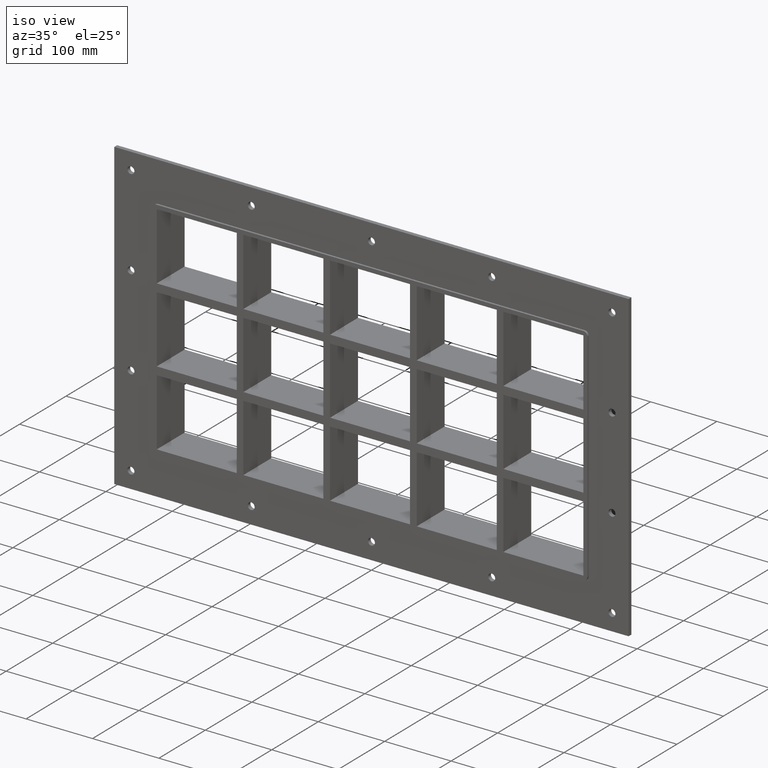
[diagram: clean part render]
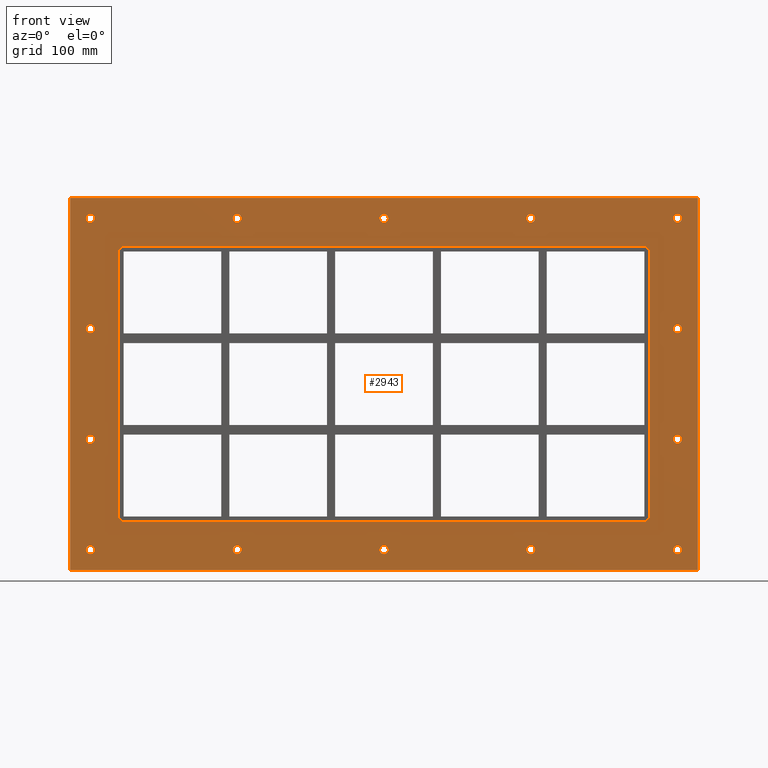
[diagram: tour spotlight — one face highlighted and labeled with its STEP entity id]
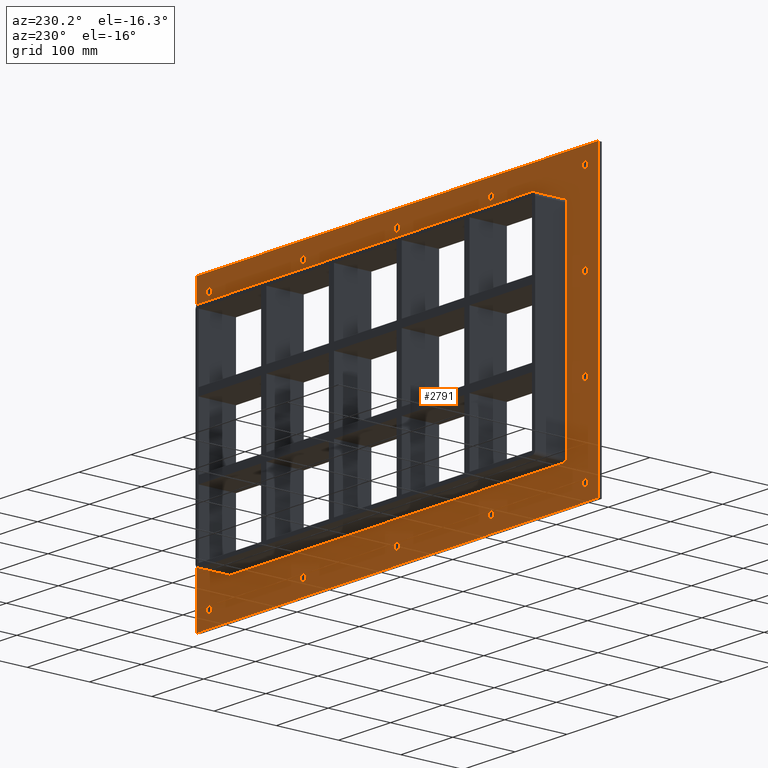
[diagram: tour spotlight — one face highlighted and labeled with its STEP entity id]
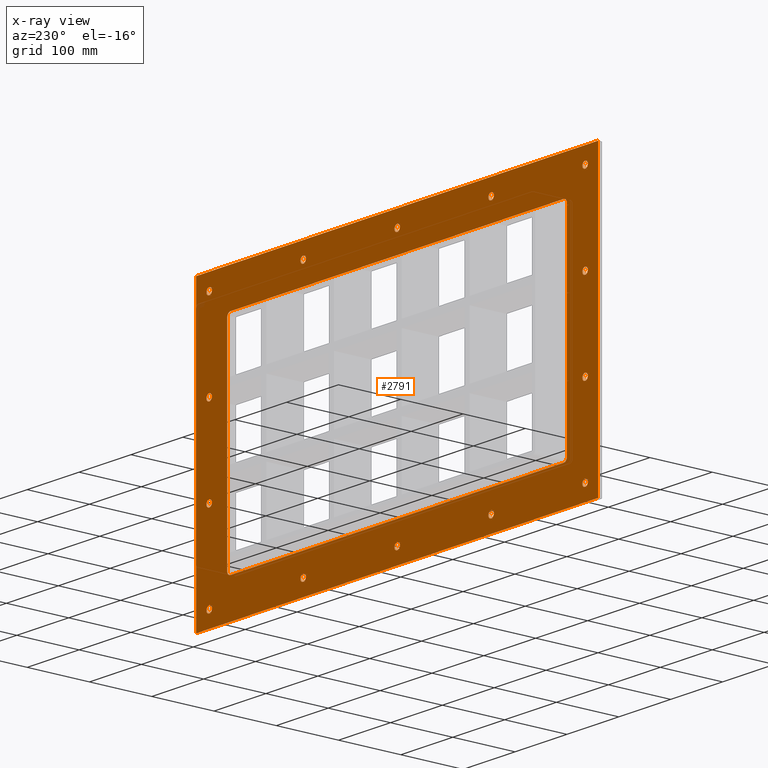
[diagram: x-ray of the same camera — body ghosted, this tour face saturated]
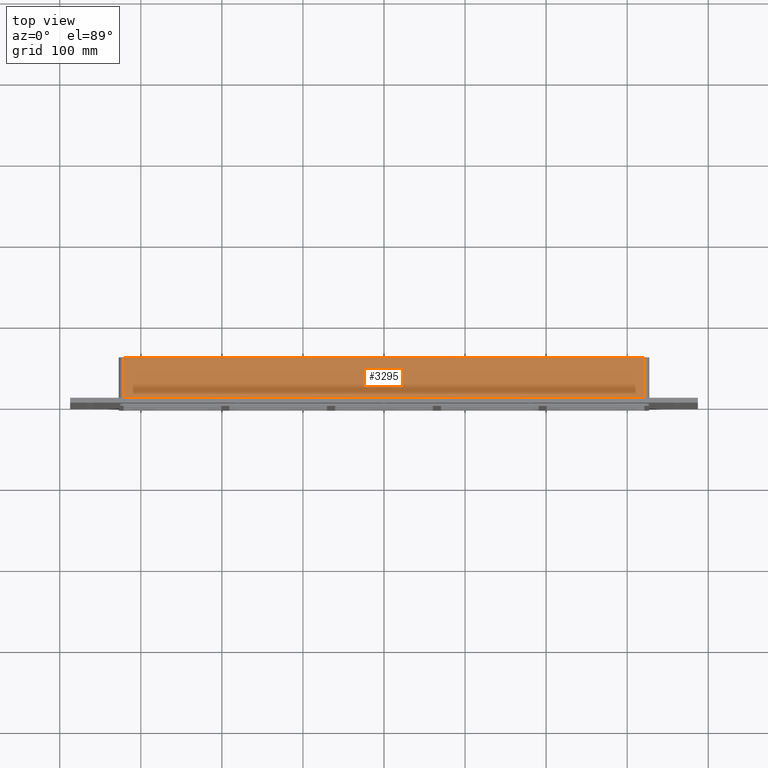
[diagram: tour spotlight — one face highlighted and labeled with its STEP entity id]
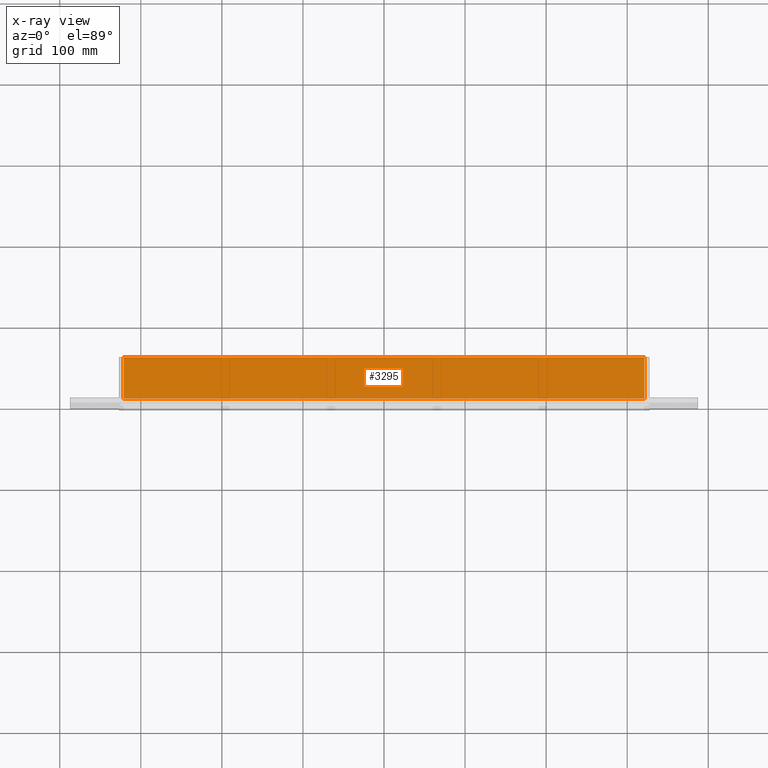
[diagram: x-ray of the same camera — body ghosted, this tour face saturated]
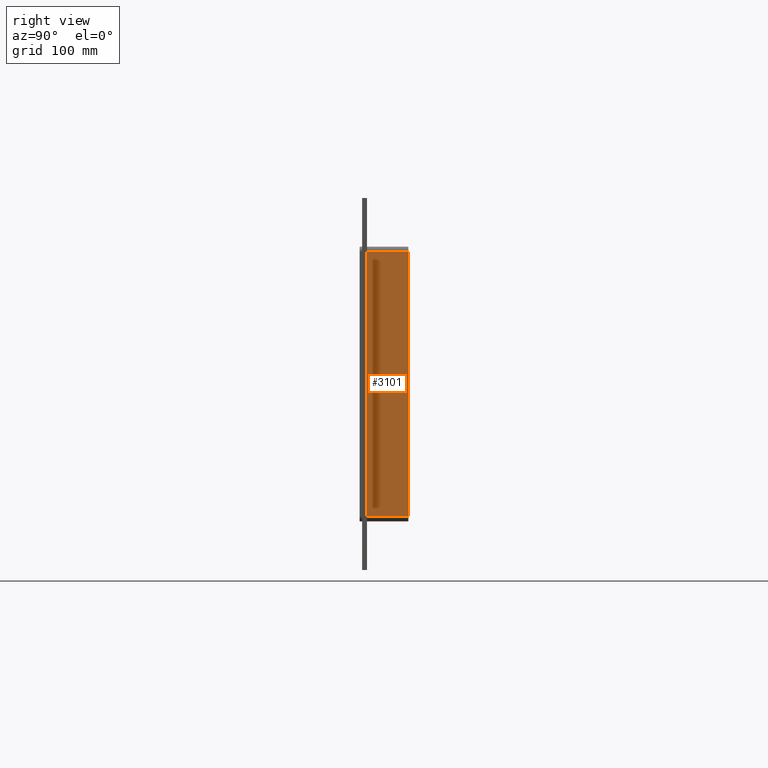
[diagram: tour spotlight — one face highlighted and labeled with its STEP entity id]
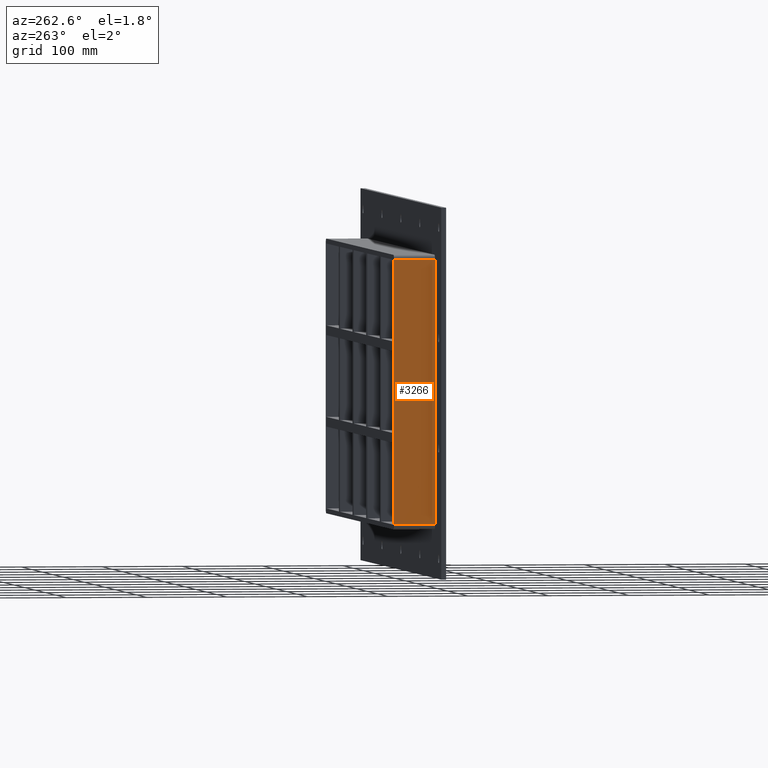
[diagram: tour spotlight — one face highlighted and labeled with its STEP entity id]
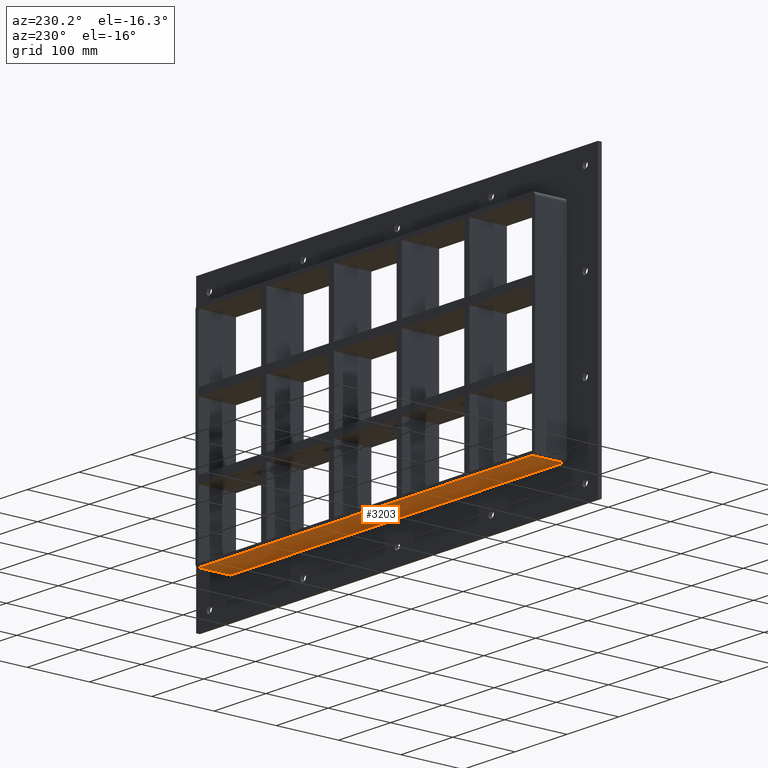
[diagram: tour spotlight — one face highlighted and labeled with its STEP entity id]
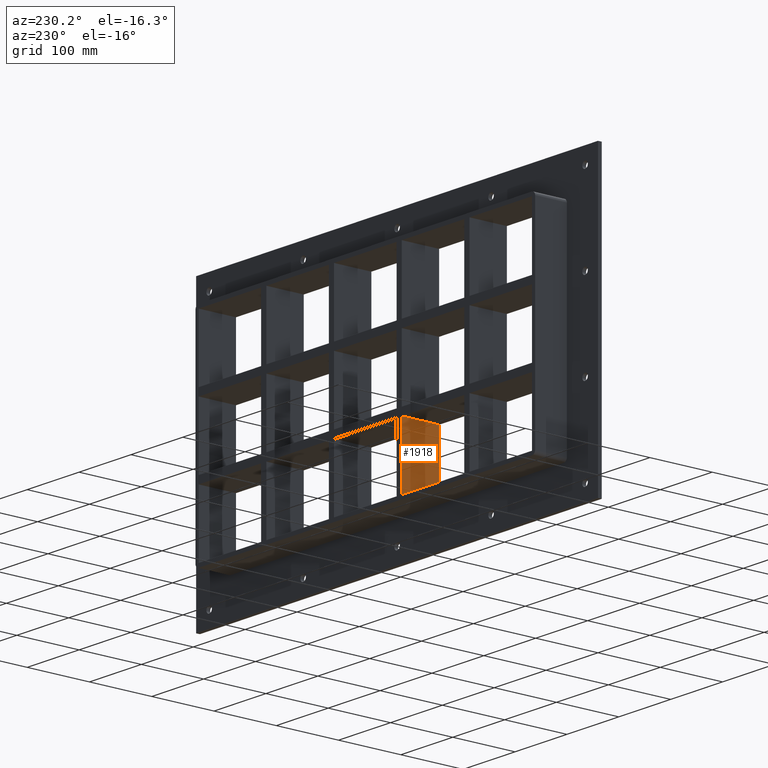
[diagram: tour spotlight — one face highlighted and labeled with its STEP entity id]
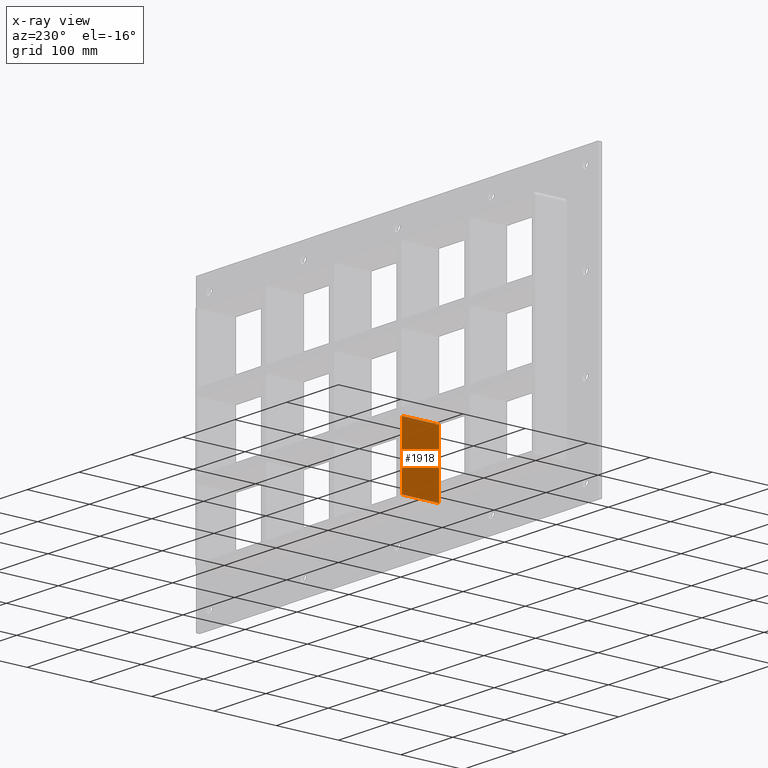
[diagram: x-ray of the same camera — body ghosted, this tour face saturated]
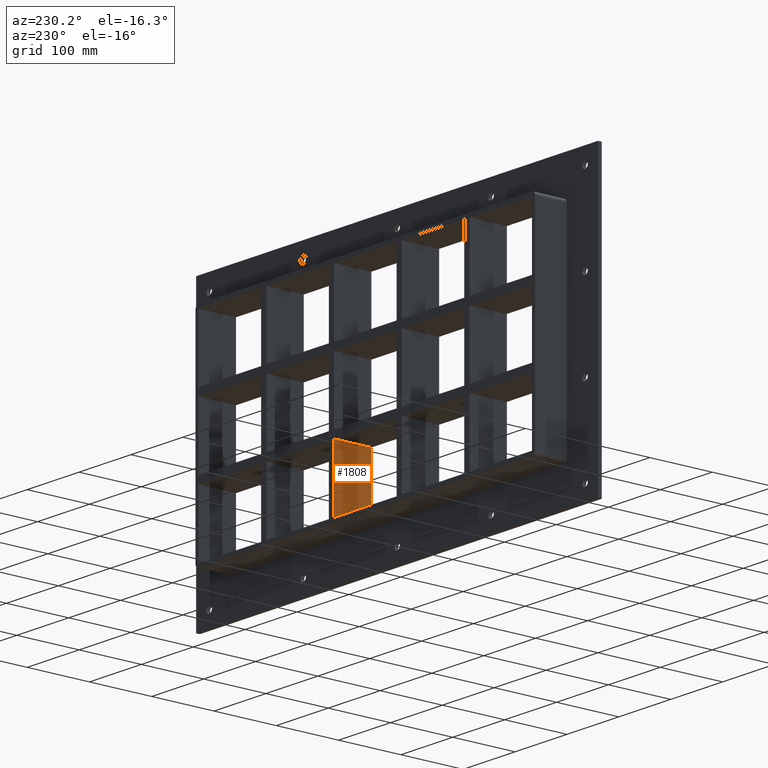
[diagram: tour spotlight — one face highlighted and labeled with its STEP entity id]
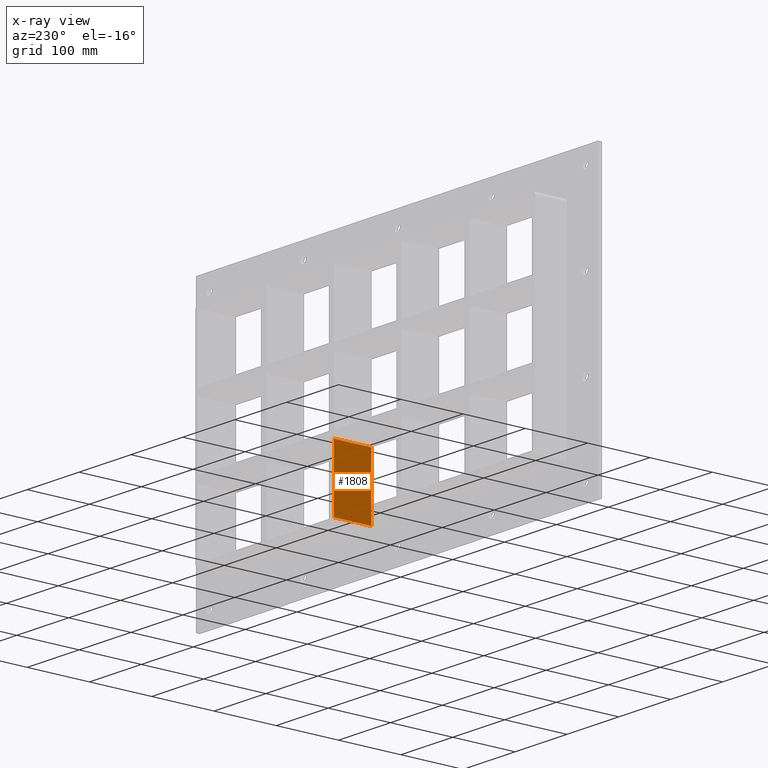
[diagram: x-ray of the same camera — body ghosted, this tour face saturated]
A machine part: a face-by-face anatomy tour. The part has 98 B-rep faces; the first image is the clean iso view, then the 8 largest visible faces are spotlighted one at a time (largest first), each with its STEP entity span.

Face 1 — front view, entity #2943. In plain terms, the highlighted planar face has unit normal (0, 1, 0).
Definition (entity closure, byte-faithful):
#84=CARTESIAN_POINT('',(-357.00000000000011,0.0,-204.50000000000006));
#85=VERTEX_POINT('',#84);
#86=CARTESIAN_POINT('',(-362.25000000000011,0.0,-204.50000000000006));
#87=DIRECTION('',(0.0,1.0,0.0));
#88=DIRECTION('',(1.0,0.0,0.0));
#89=AXIS2_PLACEMENT_3D('',#86,#87,#88);
#90=CIRCLE('',#89,5.25);
#91=EDGE_CURVE('',#85,#85,#90,.T.);
#112=CARTESIAN_POINT('',(367.39999999999986,0.0,-68.200000000000045));
#113=VERTEX_POINT('',#112);
#114=CARTESIAN_POINT('',(362.14999999999986,0.0,-68.200000000000045));
#115=DIRECTION('',(0.0,1.0,0.0));
#116=DIRECTION('',(1.0,0.0,0.0));
#117=AXIS2_PLACEMENT_3D('',#114,#115,#116);
#118=CIRCLE('',#117,5.25);
#119=EDGE_CURVE('',#113,#113,#118,.T.);
#140=CARTESIAN_POINT('',(-357.00000000000011,0.0,-68.200000000000045));
#141=VERTEX_POINT('',#140);
#142=CARTESIAN_POINT('',(-362.25000000000011,0.0,-68.200000000000045));
#143=DIRECTION('',(0.0,1.0,0.0));
#144=DIRECTION('',(1.0,0.0,0.0));
#145=AXIS2_PLACEMENT_3D('',#142,#143,#144);
#146=CIRCLE('',#145,5.25);
#147=EDGE_CURVE('',#141,#141,#146,.T.);
#168=CARTESIAN_POINT('',(367.39999999999986,0.0,68.099999999999994));
#169=VERTEX_POINT('',#168);
#170=CARTESIAN_POINT('',(362.14999999999986,0.0,68.099999999999994));
#171=DIRECTION('',(0.0,1.0,0.0));
#172=DIRECTION('',(1.0,0.0,0.0));
#173=AXIS2_PLACEMENT_3D('',#170,#171,#172);
#174=CIRCLE('',#173,5.25);
#175=EDGE_CURVE('',#169,#169,#174,.T.);
#196=CARTESIAN_POINT('',(-357.00000000000011,0.0,68.099999999999994));
#197=VERTEX_POINT('',#196);
#198=CARTESIAN_POINT('',(-362.25000000000011,0.0,68.099999999999994));
#199=DIRECTION('',(0.0,1.0,0.0));
#200=DIRECTION('',(1.0,0.0,0.0));
#201=AXIS2_PLACEMENT_3D('',#198,#199,#200);
#202=CIRCLE('',#201,5.25);
#203=EDGE_CURVE('',#197,#197,#202,.T.);
#224=CARTESIAN_POINT('',(-175.90000000000009,0.0,204.40000000000001));
#225=VERTEX_POINT('',#224);
#226=CARTESIAN_POINT('',(-181.15000000000009,0.0,204.40000000000001));
#227=DIRECTION('',(0.0,1.0,0.0));
#228=DIRECTION('',(1.0,0.0,0.0));
#229=AXIS2_PLACEMENT_3D('',#226,#227,#228);
#230=CIRCLE('',#229,5.25);
#231=EDGE_CURVE('',#225,#225,#230,.T.);
#252=CARTESIAN_POINT('',(-175.90000000000009,0.0,-204.50000000000006));
#253=VERTEX_POINT('',#252);
#254=CARTESIAN_POINT('',(-181.15000000000009,0.0,-204.50000000000006));
#255=DIRECTION('',(0.0,1.0,0.0));
#256=DIRECTION('',(1.0,0.0,0.0));
#257=AXIS2_PLACEMENT_3D('',#254,#255,#256);
#258=CIRCLE('',#257,5.25);
#259=EDGE_CURVE('',#253,#253,#258,.T.);
#280=CARTESIAN_POINT('',(5.199999999999889,0.0,204.40000000000001));
#281=VERTEX_POINT('',#280);
#282=CARTESIAN_POINT('',(-0.050000000000097,0.0,204.40000000000001));
#283=DIRECTION('',(0.0,1.0,0.0));
#284=DIRECTION('',(1.0,0.0,0.0));
#285=AXIS2_PLACEMENT_3D('',#282,#283,#284);
#286=CIRCLE('',#285,5.25);
#287=EDGE_CURVE('',#281,#281,#286,.T.);
#308=CARTESIAN_POINT('',(5.199999999999889,0.0,-204.50000000000006));
#309=VERTEX_POINT('',#308);
#310=CARTESIAN_POINT('',(-0.050000000000097,0.0,-204.50000000000006));
#311=DIRECTION('',(0.0,1.0,0.0));
#312=DIRECTION('',(1.0,0.0,0.0));
#313=AXIS2_PLACEMENT_3D('',#310,#311,#312);
#314=CIRCLE('',#313,5.25);
#315=EDGE_CURVE('',#309,#309,#314,.T.);
#336=CARTESIAN_POINT('',(186.2999999999999,0.0,204.40000000000001));
#337=VERTEX_POINT('',#336);
#338=CARTESIAN_POINT('',(181.0499999999999,0.0,204.40000000000001));
#339=DIRECTION('',(0.0,1.0,0.0));
#340=DIRECTION('',(1.0,0.0,0.0));
#341=AXIS2_PLACEMENT_3D('',#338,#339,#340);
#342=CIRCLE('',#341,5.25);
#343=EDGE_CURVE('',#337,#337,#342,.T.);
#364=CARTESIAN_POINT('',(186.2999999999999,0.0,-204.50000000000006));
#365=VERTEX_POINT('',#364);
#366=CARTESIAN_POINT('',(181.0499999999999,0.0,-204.50000000000006));
#367=DIRECTION('',(0.0,1.0,0.0));
#368=DIRECTION('',(1.0,0.0,0.0));
#369=AXIS2_PLACEMENT_3D('',#366,#367,#368);
#370=CIRCLE('',#369,5.25);
#371=EDGE_CURVE('',#365,#365,#370,.T.);
#392=CARTESIAN_POINT('',(367.39999999999986,0.0,-204.50000000000006));
#393=VERTEX_POINT('',#392);
#394=CARTESIAN_POINT('',(362.14999999999986,0.0,-204.50000000000006));
#395=DIRECTION('',(0.0,1.0,0.0));
#396=DIRECTION('',(1.0,0.0,0.0));
#397=AXIS2_PLACEMENT_3D('',#394,#395,#396);
#398=CIRCLE('',#397,5.25);
#399=EDGE_CURVE('',#393,#393,#398,.T.);
#420=CARTESIAN_POINT('',(-357.00000000000011,0.0,204.40000000000001));
#421=VERTEX_POINT('',#420);
#422=CARTESIAN_POINT('',(-362.25000000000011,0.0,204.40000000000001));
#423=DIRECTION('',(0.0,1.0,0.0));
#424=DIRECTION('',(1.0,0.0,0.0));
#425=AXIS2_PLACEMENT_3D('',#422,#423,#424);
#426=CIRCLE('',#425,5.25);
#427=EDGE_CURVE('',#421,#421,#426,.T.);
#448=CARTESIAN_POINT('',(367.39999999999986,0.0,204.40000000000001));
#449=VERTEX_POINT('',#448);
#450=CARTESIAN_POINT('',(362.14999999999986,0.0,204.40000000000001));
#451=DIRECTION('',(0.0,1.0,0.0));
#452=DIRECTION('',(1.0,0.0,0.0));
#453=AXIS2_PLACEMENT_3D('',#450,#451,#452);
#454=CIRCLE('',#453,5.25);
#455=EDGE_CURVE('',#449,#449,#454,.T.);
#2792=CARTESIAN_POINT('',(0.0,0.0,-2.043494E-014));
#2793=DIRECTION('',(0.0,1.0,0.0));
#2794=DIRECTION('',(0.0,0.0,1.0));
#2795=AXIS2_PLACEMENT_3D('',#2792,#2793,#2794);
#2796=PLANE('',#2795);
#2797=CARTESIAN_POINT('',(-387.25,0.0,229.50000000000003));
#2798=VERTEX_POINT('',#2797);
#2799=CARTESIAN_POINT('',(387.25,0.0,229.50000000000003));
#2800=VERTEX_POINT('',#2799);
#2801=CARTESIAN_POINT('',(-387.25,0.0,229.50000000000003));
#2802=DIRECTION('',(1.0,0.0,0.0));
#2803=VECTOR('',#2802,774.5);
#2804=LINE('',#2801,#2803);
#2805=EDGE_CURVE('',#2798,#2800,#2804,.T.);
#2806=ORIENTED_EDGE('',*,*,#2805,.F.);
#2807=CARTESIAN_POINT('',(-387.25,0.0,-229.50000000000006));
#2808=VERTEX_POINT('',#2807);
#2809=CARTESIAN_POINT('',(-387.25,0.0,-229.50000000000006));
#2810=DIRECTION('',(0.0,0.0,1.0));
#2811=VECTOR('',#2810,459.00000000000006);
#2812=LINE('',#2809,#2811);
#2813=EDGE_CURVE('',#2808,#2798,#2812,.T.);
#2814=ORIENTED_EDGE('',*,*,#2813,.F.);
#2815=CARTESIAN_POINT('',(387.25,0.0,-229.50000000000006));
#2816=VERTEX_POINT('',#2815);
#2817=CARTESIAN_POINT('',(387.25,0.0,-229.50000000000006));
#2818=DIRECTION('',(-1.0,0.0,0.0));
#2819=VECTOR('',#2818,774.5);
#2820=LINE('',#2817,#2819);
#2821=EDGE_CURVE('',#2816,#2808,#2820,.T.);
#2822=ORIENTED_EDGE('',*,*,#2821,.F.);
#2823=CARTESIAN_POINT('',(387.25,0.0,229.50000000000003));
#2824=DIRECTION('',(0.0,0.0,-1.0));
#2825=VECTOR('',#2824,459.00000000000006);
#2826=LINE('',#2823,#2825);
#2827=EDGE_CURVE('',#2800,#2816,#2826,.T.);
#2828=ORIENTED_EDGE('',*,*,#2827,.F.);
#2829=EDGE_LOOP('',(#2806,#2814,#2822,#2828));
#2830=FACE_OUTER_BOUND('',#2829,.T.);
#2831=ORIENTED_EDGE('',*,*,#91,.T.);
#2832=EDGE_LOOP('',(#2831));
#2833=FACE_BOUND('',#2832,.T.);
#2834=ORIENTED_EDGE('',*,*,#119,.T.);
#2835=EDGE_LOOP('',(#2834));
#2836=FACE_BOUND('',#2835,.T.);
#2837=ORIENTED_EDGE('',*,*,#147,.T.);
#2838=EDGE_LOOP('',(#2837));
#2839=FACE_BOUND('',#2838,.T.);
#2840=ORIENTED_EDGE('',*,*,#175,.T.);
#2841=EDGE_LOOP('',(#2840));
#2842=FACE_BOUND('',#2841,.T.);
#2843=ORIENTED_EDGE('',*,*,#203,.T.);
#2844=EDGE_LOOP('',(#2843));
#2845=FACE_BOUND('',#2844,.T.);
#2846=ORIENTED_EDGE('',*,*,#231,.T.);
#2847=EDGE_LOOP('',(#2846));
#2848=FACE_BOUND('',#2847,.T.);
#2849=ORIENTED_EDGE('',*,*,#259,.T.);
#2850=EDGE_LOOP('',(#2849));
#2851=FACE_BOUND('',#2850,.T.);
#2852=ORIENTED_EDGE('',*,*,#287,.T.);
#2853=EDGE_LOOP('',(#2852));
#2854=FACE_BOUND('',#2853,.T.);
#2855=ORIENTED_EDGE('',*,*,#315,.T.);
#2856=EDGE_LOOP('',(#2855));
#2857=FACE_BOUND('',#2856,.T.);
#2858=ORIENTED_EDGE('',*,*,#343,.T.);
#2859=EDGE_LOOP('',(#2858));
#2860=FACE_BOUND('',#2859,.T.);
#2861=ORIENTED_EDGE('',*,*,#371,.T.);
#2862=EDGE_LOOP('',(#2861));
#2863=FACE_BOUND('',#2862,.T.);
#2864=ORIENTED_EDGE('',*,*,#399,.T.);
#2865=EDGE_LOOP('',(#2864));
#2866=FACE_BOUND('',#2865,.T.);
#2867=ORIENTED_EDGE('',*,*,#427,.T.);
#2868=EDGE_LOOP('',(#2867));
#2869=FACE_BOUND('',#2868,.T.);
#2870=ORIENTED_EDGE('',*,*,#455,.T.);
#2871=EDGE_LOOP('',(#2870));
#2872=FACE_BOUND('',#2871,.T.);
#2873=CARTESIAN_POINT('',(-327.25,0.0,-163.5));
#2874=VERTEX_POINT('',#2873);
#2875=CARTESIAN_POINT('',(-321.25,0.0,-169.50000000000003));
#2876=VERTEX_POINT('',#2875);
#2877=CARTESIAN_POINT('',(-321.25,0.0,-163.5));
#2878=DIRECTION('',(0.0,-1.0,0.0));
#2879=DIRECTION('',(-0.707106781186543,0.0,-0.707106781186552));
#2880=AXIS2_PLACEMENT_3D('',#2877,#2878,#2879);
#2881=CIRCLE('',#2880,6.000000000000001);
#2882=EDGE_CURVE('',#2874,#2876,#2881,.T.);
#2883=ORIENTED_EDGE('',*,*,#2882,.F.);
#2884=CARTESIAN_POINT('',(-327.25,0.0,163.5));
#2885=VERTEX_POINT('',#2884);
#2886=CARTESIAN_POINT('',(-327.25,0.0,163.5));
#2887=DIRECTION('',(0.0,0.0,-1.0));
#2888=VECTOR('',#2887,327.0);
#2889=LINE('',#2886,#2888);
#2890=EDGE_CURVE('',#2885,#2874,#2889,.T.);
#2891=ORIENTED_EDGE('',*,*,#2890,.F.);
#2892=CARTESIAN_POINT('',(-321.25,0.0,169.50000000000003));
#2893=VERTEX_POINT('',#2892);
#2894=CARTESIAN_POINT('',(-321.25,0.0,163.5));
#2895=DIRECTION('',(0.0,-1.0,0.0));
#2896=DIRECTION('',(-0.707106781186543,0.0,0.707106781186552));
#2897=AXIS2_PLACEMENT_3D('',#2894,#2895,#2896);
#2898=CIRCLE('',#2897,6.000000000000001);
#2899=EDGE_CURVE('',#2893,#2885,#2898,.T.);
#2900=ORIENTED_EDGE('',*,*,#2899,.F.);
#2901=CARTESIAN_POINT('',(321.25,0.0,169.50000000000003));
#2902=VERTEX_POINT('',#2901);
#2903=CARTESIAN_POINT('',(321.25,0.0,169.50000000000003));
#2904=DIRECTION('',(-1.0,0.0,0.0));
#2905=VECTOR('',#2904,642.5);
#2906=LINE('',#2903,#2905);
#2907=EDGE_CURVE('',#2902,#2893,#2906,.T.);
#2908=ORIENTED_EDGE('',*,*,#2907,.F.);
#2909=CARTESIAN_POINT('',(327.25,0.0,163.5));
#2910=VERTEX_POINT('',#2909);
#2911=CARTESIAN_POINT('',(321.25,0.0,163.5));
#2912=DIRECTION('',(0.0,-1.0,0.0));
#2913=DIRECTION('',(0.707106781186543,0.0,0.707106781186552));
#2914=AXIS2_PLACEMENT_3D('',#2911,#2912,#2913);
#2915=CIRCLE('',#2914,6.000000000000001);
#2916=EDGE_CURVE('',#2910,#2902,#2915,.T.);
#2917=ORIENTED_EDGE('',*,*,#2916,.F.);
#2918=CARTESIAN_POINT('',(327.25,0.0,-163.5));
#2919=VERTEX_POINT('',#2918);
#2920=CARTESIAN_POINT('',(327.25,0.0,-163.50000000000003));
#2921=DIRECTION('',(0.0,0.0,1.0));
#2922=VECTOR('',#2921,327.0);
#2923=LINE('',#2920,#2922);
#2924=EDGE_CURVE('',#2919,#2910,#2923,.T.);
#2925=ORIENTED_EDGE('',*,*,#2924,.F.);
#2926=CARTESIAN_POINT('',(321.25,0.0,-169.50000000000003));
#2927=VERTEX_POINT('',#2926);
#2928=CARTESIAN_POINT('',(321.25,0.0,-163.5));
#2929=DIRECTION('',(0.0,-1.0,0.0));
#2930=DIRECTION('',(0.707106781186543,0.0,-0.707106781186552));
#2931=AXIS2_PLACEMENT_3D('',#2928,#2929,#2930);
#2932=CIRCLE('',#2931,6.000000000000001);
#2933=EDGE_CURVE('',#2927,#2919,#2932,.T.);
#2934=ORIENTED_EDGE('',*,*,#2933,.F.);
#2935=CARTESIAN_POINT('',(-321.25,0.0,-169.50000000000003));
#2936=DIRECTION('',(1.0,0.0,0.0));
#2937=VECTOR('',#2936,642.5);
#2938=LINE('',#2935,#2937);
#2939=EDGE_CURVE('',#2876,#2927,#2938,.T.);
#2940=ORIENTED_EDGE('',*,*,#2939,.F.);
#2941=EDGE_LOOP('',(#2883,#2891,#2900,#2908,#2917,#2925,#2934,#2940));
#2942=FACE_BOUND('',#2941,.T.);
#2943=ADVANCED_FACE('',(#2830,#2833,#2836,#2839,#2842,#2845,#2848,#2851,#2854,#2857,#2860,#2863,#2866,#2869,#2872,#2942),#2796,.F.);

Face 2 — auxiliary view, entity #2791. An x-ray twin of the same camera follows (body ghosted, this face saturated) — the face is partly hidden behind the body. In plain terms, the highlighted planar face has unit normal (0, 1, 0).
Definition (entity closure, byte-faithful):
#73=CARTESIAN_POINT('',(-367.50000000000006,5.999999999999943,-204.50000000000006));
#74=VERTEX_POINT('',#73);
#75=CARTESIAN_POINT('',(-362.25000000000011,5.999999999999943,-204.50000000000006));
#76=DIRECTION('',(0.0,-1.0,0.0));
#77=DIRECTION('',(1.0,0.0,0.0));
#78=AXIS2_PLACEMENT_3D('',#75,#76,#77);
#79=CIRCLE('',#78,5.25);
#80=EDGE_CURVE('',#74,#74,#79,.T.);
#101=CARTESIAN_POINT('',(356.89999999999992,5.999999999999943,-68.200000000000045));
#102=VERTEX_POINT('',#101);
#103=CARTESIAN_POINT('',(362.14999999999986,5.999999999999943,-68.200000000000045));
#104=DIRECTION('',(0.0,-1.0,0.0));
#105=DIRECTION('',(1.0,0.0,0.0));
#106=AXIS2_PLACEMENT_3D('',#103,#104,#105);
#107=CIRCLE('',#106,5.25);
#108=EDGE_CURVE('',#102,#102,#107,.T.);
#129=CARTESIAN_POINT('',(-367.50000000000006,5.999999999999943,-68.200000000000045));
#130=VERTEX_POINT('',#129);
#131=CARTESIAN_POINT('',(-362.25000000000011,5.999999999999943,-68.200000000000045));
#132=DIRECTION('',(0.0,-1.0,0.0));
#133=DIRECTION('',(1.0,0.0,0.0));
#134=AXIS2_PLACEMENT_3D('',#131,#132,#133);
#135=CIRCLE('',#134,5.25);
#136=EDGE_CURVE('',#130,#130,#135,.T.);
#157=CARTESIAN_POINT('',(356.89999999999992,5.999999999999943,68.099999999999994));
#158=VERTEX_POINT('',#157);
#159=CARTESIAN_POINT('',(362.14999999999986,5.999999999999943,68.099999999999994));
#160=DIRECTION('',(0.0,-1.0,0.0));
#161=DIRECTION('',(1.0,0.0,0.0));
#162=AXIS2_PLACEMENT_3D('',#159,#160,#161);
#163=CIRCLE('',#162,5.25);
#164=EDGE_CURVE('',#158,#158,#163,.T.);
#185=CARTESIAN_POINT('',(-367.50000000000006,5.999999999999943,68.099999999999994));
#186=VERTEX_POINT('',#185);
#187=CARTESIAN_POINT('',(-362.25000000000011,5.999999999999943,68.099999999999994));
#188=DIRECTION('',(0.0,-1.0,0.0));
#189=DIRECTION('',(1.0,0.0,0.0));
#190=AXIS2_PLACEMENT_3D('',#187,#188,#189);
#191=CIRCLE('',#190,5.25);
#192=EDGE_CURVE('',#186,#186,#191,.T.);
#213=CARTESIAN_POINT('',(-186.40000000000009,5.999999999999943,204.40000000000001));
#214=VERTEX_POINT('',#213);
#215=CARTESIAN_POINT('',(-181.15000000000009,5.999999999999943,204.40000000000001));
#216=DIRECTION('',(0.0,-1.0,0.0));
#217=DIRECTION('',(1.0,0.0,0.0));
#218=AXIS2_PLACEMENT_3D('',#215,#216,#217);
#219=CIRCLE('',#218,5.25);
#220=EDGE_CURVE('',#214,#214,#219,.T.);
#241=CARTESIAN_POINT('',(-186.40000000000009,5.999999999999943,-204.50000000000006));
#242=VERTEX_POINT('',#241);
#243=CARTESIAN_POINT('',(-181.15000000000009,5.999999999999943,-204.50000000000006));
#244=DIRECTION('',(0.0,-1.0,0.0));
#245=DIRECTION('',(1.0,0.0,0.0));
#246=AXIS2_PLACEMENT_3D('',#243,#244,#245);
#247=CIRCLE('',#246,5.25);
#248=EDGE_CURVE('',#242,#242,#247,.T.);
#269=CARTESIAN_POINT('',(-5.300000000000082,5.999999999999943,204.40000000000001));
#270=VERTEX_POINT('',#269);
#271=CARTESIAN_POINT('',(-0.050000000000097,5.999999999999943,204.40000000000001));
#272=DIRECTION('',(0.0,-1.0,0.0));
#273=DIRECTION('',(1.0,0.0,0.0));
#274=AXIS2_PLACEMENT_3D('',#271,#272,#273);
#275=CIRCLE('',#274,5.25);
#276=EDGE_CURVE('',#270,#270,#275,.T.);
#297=CARTESIAN_POINT('',(-5.300000000000082,5.999999999999943,-204.50000000000006));
#298=VERTEX_POINT('',#297);
#299=CARTESIAN_POINT('',(-0.050000000000097,5.999999999999943,-204.50000000000006));
#300=DIRECTION('',(0.0,-1.0,0.0));
#301=DIRECTION('',(1.0,0.0,0.0));
#302=AXIS2_PLACEMENT_3D('',#299,#300,#301);
#303=CIRCLE('',#302,5.25);
#304=EDGE_CURVE('',#298,#298,#303,.T.);
#325=CARTESIAN_POINT('',(175.7999999999999,5.999999999999943,204.40000000000001));
#326=VERTEX_POINT('',#325);
#327=CARTESIAN_POINT('',(181.0499999999999,5.999999999999943,204.40000000000001));
#328=DIRECTION('',(0.0,-1.0,0.0));
#329=DIRECTION('',(1.0,0.0,0.0));
#330=AXIS2_PLACEMENT_3D('',#327,#328,#329);
#331=CIRCLE('',#330,5.25);
#332=EDGE_CURVE('',#326,#326,#331,.T.);
#353=CARTESIAN_POINT('',(175.7999999999999,5.999999999999943,-204.50000000000006));
#354=VERTEX_POINT('',#353);
#355=CARTESIAN_POINT('',(181.0499999999999,5.999999999999943,-204.50000000000006));
#356=DIRECTION('',(0.0,-1.0,0.0));
#357=DIRECTION('',(1.0,0.0,0.0));
#358=AXIS2_PLACEMENT_3D('',#355,#356,#357);
#359=CIRCLE('',#358,5.25);
#360=EDGE_CURVE('',#354,#354,#359,.T.);
#381=CARTESIAN_POINT('',(356.89999999999992,5.999999999999943,-204.50000000000006));
#382=VERTEX_POINT('',#381);
#383=CARTESIAN_POINT('',(362.14999999999986,5.999999999999943,-204.50000000000006));
#384=DIRECTION('',(0.0,-1.0,0.0));
#385=DIRECTION('',(1.0,0.0,0.0));
#386=AXIS2_PLACEMENT_3D('',#383,#384,#385);
#387=CIRCLE('',#386,5.25);
#388=EDGE_CURVE('',#382,#382,#387,.T.);
#409=CARTESIAN_POINT('',(-367.50000000000006,5.999999999999943,204.40000000000001));
#410=VERTEX_POINT('',#409);
#411=CARTESIAN_POINT('',(-362.25000000000011,5.999999999999943,204.40000000000001));
#412=DIRECTION('',(0.0,-1.0,0.0));
#413=DIRECTION('',(1.0,0.0,0.0));
#414=AXIS2_PLACEMENT_3D('',#411,#412,#413);
#415=CIRCLE('',#414,5.25);
#416=EDGE_CURVE('',#410,#410,#415,.T.);
#437=CARTESIAN_POINT('',(356.89999999999992,5.999999999999943,204.40000000000001));
#438=VERTEX_POINT('',#437);
#439=CARTESIAN_POINT('',(362.14999999999986,5.999999999999943,204.40000000000001));
#440=DIRECTION('',(0.0,-1.0,0.0));
#441=DIRECTION('',(1.0,0.0,0.0));
#442=AXIS2_PLACEMENT_3D('',#439,#440,#441);
#443=CIRCLE('',#442,5.25);
#444=EDGE_CURVE('',#438,#438,#443,.T.);
#2640=CARTESIAN_POINT('',(0.0,6.000000000000001,-2.043494E-014));
#2641=DIRECTION('',(0.0,1.0,0.0));
#2642=DIRECTION('',(0.0,0.0,1.0));
#2643=AXIS2_PLACEMENT_3D('',#2640,#2641,#2642);
#2644=PLANE('',#2643);
#2645=CARTESIAN_POINT('',(-387.25,6.000000000000001,229.50000000000003));
#2646=VERTEX_POINT('',#2645);
#2647=CARTESIAN_POINT('',(387.25,6.000000000000001,229.50000000000003));
#2648=VERTEX_POINT('',#2647);
#2649=CARTESIAN_POINT('',(-387.25,6.000000000000001,229.50000000000003));
#2650=DIRECTION('',(1.0,0.0,0.0));
#2651=VECTOR('',#2650,774.5);
#2652=LINE('',#2649,#2651);
#2653=EDGE_CURVE('',#2646,#2648,#2652,.T.);
#2654=ORIENTED_EDGE('',*,*,#2653,.T.);
#2655=CARTESIAN_POINT('',(387.25,6.000000000000001,-229.50000000000003));
#2656=VERTEX_POINT('',#2655);
#2657=CARTESIAN_POINT('',(387.25,6.000000000000001,229.50000000000003));
#2658=DIRECTION('',(0.0,0.0,-1.0));
#2659=VECTOR('',#2658,459.00000000000006);
#2660=LINE('',#2657,#2659);
#2661=EDGE_CURVE('',#2648,#2656,#2660,.T.);
#2662=ORIENTED_EDGE('',*,*,#2661,.T.);
#2663=CARTESIAN_POINT('',(-387.25,6.000000000000001,-229.50000000000003));
#2664=VERTEX_POINT('',#2663);
#2665=CARTESIAN_POINT('',(387.25,6.000000000000001,-229.50000000000006));
#2666=DIRECTION('',(-1.0,0.0,0.0));
#2667=VECTOR('',#2666,774.5);
#2668=LINE('',#2665,#2667);
#2669=EDGE_CURVE('',#2656,#2664,#2668,.T.);
#2670=ORIENTED_EDGE('',*,*,#2669,.T.);
#2671=CARTESIAN_POINT('',(-387.25,6.000000000000001,-229.50000000000006));
#2672=DIRECTION('',(0.0,0.0,1.0));
#2673=VECTOR('',#2672,459.00000000000006);
#2674=LINE('',#2671,#2673);
#2675=EDGE_CURVE('',#2664,#2646,#2674,.T.);
#2676=ORIENTED_EDGE('',*,*,#2675,.T.);
#2677=EDGE_LOOP('',(#2654,#2662,#2670,#2676));
#2678=FACE_OUTER_BOUND('',#2677,.T.);
#2679=ORIENTED_EDGE('',*,*,#80,.T.);
#2680=EDGE_LOOP('',(#2679));
#2681=FACE_BOUND('',#2680,.T.);
#2682=ORIENTED_EDGE('',*,*,#108,.T.);
#2683=EDGE_LOOP('',(#2682));
#2684=FACE_BOUND('',#2683,.T.);
#2685=ORIENTED_EDGE('',*,*,#136,.T.);
#2686=EDGE_LOOP('',(#2685));
#2687=FACE_BOUND('',#2686,.T.);
#2688=ORIENTED_EDGE('',*,*,#164,.T.);
#2689=EDGE_LOOP('',(#2688));
#2690=FACE_BOUND('',#2689,.T.);
#2691=ORIENTED_EDGE('',*,*,#192,.T.);
#2692=EDGE_LOOP('',(#2691));
#2693=FACE_BOUND('',#2692,.T.);
#2694=ORIENTED_EDGE('',*,*,#220,.T.);
#2695=EDGE_LOOP('',(#2694));
#2696=FACE_BOUND('',#2695,.T.);
#2697=ORIENTED_EDGE('',*,*,#248,.T.);
#2698=EDGE_LOOP('',(#2697));
#2699=FACE_BOUND('',#2698,.T.);
#2700=ORIENTED_EDGE('',*,*,#276,.T.);
#2701=EDGE_LOOP('',(#2700));
#2702=FACE_BOUND('',#2701,.T.);
#2703=ORIENTED_EDGE('',*,*,#304,.T.);
#2704=EDGE_LOOP('',(#2703));
#2705=FACE_BOUND('',#2704,.T.);
#2706=ORIENTED_EDGE('',*,*,#332,.T.);
#2707=EDGE_LOOP('',(#2706));
#2708=FACE_BOUND('',#2707,.T.);
#2709=ORIENTED_EDGE('',*,*,#360,.T.);
#2710=EDGE_LOOP('',(#2709));
#2711=FACE_BOUND('',#2710,.T.);
#2712=ORIENTED_EDGE('',*,*,#388,.T.);
#2713=EDGE_LOOP('',(#2712));
#2714=FACE_BOUND('',#2713,.T.);
#2715=ORIENTED_EDGE('',*,*,#416,.T.);
#2716=EDGE_LOOP('',(#2715));
#2717=FACE_BOUND('',#2716,.T.);
#2718=ORIENTED_EDGE('',*,*,#444,.T.);
#2719=EDGE_LOOP('',(#2718));
#2720=FACE_BOUND('',#2719,.T.);
#2721=CARTESIAN_POINT('',(-321.25,6.000000000000001,-169.50000000000003));
#2722=VERTEX_POINT('',#2721);
#2723=CARTESIAN_POINT('',(-327.25,6.000000000000001,-163.5));
#2724=VERTEX_POINT('',#2723);
#2725=CARTESIAN_POINT('',(-321.25,6.000000000000001,-163.5));
#2726=DIRECTION('',(0.0,1.0,0.0));
#2727=DIRECTION('',(-0.707106781186543,0.0,-0.707106781186552));
#2728=AXIS2_PLACEMENT_3D('',#2725,#2726,#2727);
#2729=CIRCLE('',#2728,6.000000000000001);
#2730=EDGE_CURVE('',#2722,#2724,#2729,.T.);
#2731=ORIENTED_EDGE('',*,*,#2730,.F.);
#2732=CARTESIAN_POINT('',(321.25,6.000000000000001,-169.50000000000003));
#2733=VERTEX_POINT('',#2732);
#2734=CARTESIAN_POINT('',(321.25,6.000000000000001,-169.50000000000003));
#2735=DIRECTION('',(-1.0,0.0,0.0));
#2736=VECTOR('',#2735,642.5);
#2737=LINE('',#2734,#2736);
#2738=EDGE_CURVE('',#2733,#2722,#2737,.T.);
#2739=ORIENTED_EDGE('',*,*,#2738,.F.);
#2740=CARTESIAN_POINT('',(327.25,6.000000000000001,-163.5));
#2741=VERTEX_POINT('',#2740);
#2742=CARTESIAN_POINT('',(321.25,6.000000000000001,-163.5));
#2743=DIRECTION('',(0.0,1.0,0.0));
#2744=DIRECTION('',(0.707106781186543,0.0,-0.707106781186552));
#2745=AXIS2_PLACEMENT_3D('',#2742,#2743,#2744);
#2746=CIRCLE('',#2745,6.000000000000001);
#2747=EDGE_CURVE('',#2741,#2733,#2746,.T.);
#2748=ORIENTED_EDGE('',*,*,#2747,.F.);
#2749=CARTESIAN_POINT('',(327.25,6.000000000000001,163.5));
#2750=VERTEX_POINT('',#2749);
#2751=CARTESIAN_POINT('',(327.25,6.000000000000001,163.5));
#2752=DIRECTION('',(0.0,0.0,-1.0));
#2753=VECTOR('',#2752,327.0);
#2754=LINE('',#2751,#2753);
#2755=EDGE_CURVE('',#2750,#2741,#2754,.T.);
#2756=ORIENTED_EDGE('',*,*,#2755,.F.);
#2757=CARTESIAN_POINT('',(321.25,6.000000000000001,169.50000000000003));
#2758=VERTEX_POINT('',#2757);
#2759=CARTESIAN_POINT('',(321.25,6.000000000000001,163.5));
#2760=DIRECTION('',(0.0,1.0,0.0));
#2761=DIRECTION('',(0.707106781186543,0.0,0.707106781186552));
#2762=AXIS2_PLACEMENT_3D('',#2759,#2760,#2761);
#2763=CIRCLE('',#2762,6.000000000000001);
#2764=EDGE_CURVE('',#2758,#2750,#2763,.T.);
#2765=ORIENTED_EDGE('',*,*,#2764,.F.);
#2766=CARTESIAN_POINT('',(-321.25,6.000000000000001,169.50000000000003));
#2767=VERTEX_POINT('',#2766);
#2768=CARTESIAN_POINT('',(-321.25,6.000000000000001,169.50000000000003));
#2769=DIRECTION('',(1.0,0.0,0.0));
#2770=VECTOR('',#2769,642.5);
#2771=LINE('',#2768,#2770);
#2772=EDGE_CURVE('',#2767,#2758,#2771,.T.);
#2773=ORIENTED_EDGE('',*,*,#2772,.F.);
#2774=CARTESIAN_POINT('',(-327.25,6.000000000000001,163.5));
#2775=VERTEX_POINT('',#2774);
#2776=CARTESIAN_POINT('',(-321.25,6.000000000000001,163.5));
#2777=DIRECTION('',(0.0,1.0,0.0));
#2778=DIRECTION('',(-0.707106781186543,0.0,0.707106781186552));
#2779=AXIS2_PLACEMENT_3D('',#2776,#2777,#2778);
#2780=CIRCLE('',#2779,6.000000000000001);
#2781=EDGE_CURVE('',#2775,#2767,#2780,.T.);
#2782=ORIENTED_EDGE('',*,*,#2781,.F.);
#2783=CARTESIAN_POINT('',(-327.25,6.000000000000001,-163.5));
#2784=DIRECTION('',(0.0,0.0,1.0));
#2785=VECTOR('',#2784,327.0);
#2786=LINE('',#2783,#2785);
#2787=EDGE_CURVE('',#2724,#2775,#2786,.T.);
#2788=ORIENTED_EDGE('',*,*,#2787,.F.);
#2789=EDGE_LOOP('',(#2731,#2739,#2748,#2756,#2765,#2773,#2782,#2788));
#2790=FACE_BOUND('',#2789,.T.);
#2791=ADVANCED_FACE('',(#2678,#2681,#2684,#2687,#2690,#2693,#2696,#2699,#2702,#2705,#2708,#2711,#2714,#2717,#2720,#2790),#2644,.T.);

Face 3 — top view, entity #3295. An x-ray twin of the same camera follows (body ghosted, this face saturated) — the face is partly hidden behind the body. In plain terms, the highlighted planar face has unit normal (0, 0, 1).
Definition (entity closure, byte-faithful):
#1273=CARTESIAN_POINT('',(-321.25,57.0,169.50000000000003));
#1274=VERTEX_POINT('',#1273);
#1282=CARTESIAN_POINT('',(321.24999999999994,57.0,169.50000000000003));
#1283=VERTEX_POINT('',#1282);
#1284=CARTESIAN_POINT('',(-321.25,57.0,169.50000000000003));
#1285=DIRECTION('',(1.0,0.0,0.0));
#1286=VECTOR('',#1285,642.5);
#1287=LINE('',#1284,#1286);
#1288=EDGE_CURVE('',#1274,#1283,#1287,.T.);
#2757=CARTESIAN_POINT('',(321.25,6.000000000000001,169.50000000000003));
#2758=VERTEX_POINT('',#2757);
#2766=CARTESIAN_POINT('',(-321.25,6.000000000000001,169.50000000000003));
#2767=VERTEX_POINT('',#2766);
#2768=CARTESIAN_POINT('',(-321.25,6.000000000000001,169.50000000000003));
#2769=DIRECTION('',(1.0,0.0,0.0));
#2770=VECTOR('',#2769,642.5);
#2771=LINE('',#2768,#2770);
#2772=EDGE_CURVE('',#2767,#2758,#2771,.T.);
#3059=CARTESIAN_POINT('',(321.25,57.0,169.50000000000003));
#3060=DIRECTION('',(0.0,-1.0,0.0));
#3061=VECTOR('',#3060,51.0);
#3062=LINE('',#3059,#3061);
#3063=EDGE_CURVE('',#1283,#2758,#3062,.T.);
#3273=CARTESIAN_POINT('',(-321.25,6.000000000000001,169.50000000000003));
#3274=DIRECTION('',(0.0,1.0,0.0));
#3275=VECTOR('',#3274,51.0);
#3276=LINE('',#3273,#3275);
#3277=EDGE_CURVE('',#2767,#1274,#3276,.T.);
#3284=CARTESIAN_POINT('',(-327.25,0.0,169.50000000000003));
#3285=DIRECTION('',(0.0,0.0,1.0));
#3286=DIRECTION('',(1.0,0.0,0.0));
#3287=AXIS2_PLACEMENT_3D('',#3284,#3285,#3286);
#3288=PLANE('',#3287);
#3289=ORIENTED_EDGE('',*,*,#2772,.T.);
#3290=ORIENTED_EDGE('',*,*,#3063,.F.);
#3291=ORIENTED_EDGE('',*,*,#1288,.F.);
#3292=ORIENTED_EDGE('',*,*,#3277,.F.);
#3293=EDGE_LOOP('',(#3289,#3290,#3291,#3292));
#3294=FACE_OUTER_BOUND('',#3293,.T.);
#3295=ADVANCED_FACE('',(#3294),#3288,.T.);

Face 4 — right view, entity #3101. In plain terms, the highlighted planar face has unit normal (1, 0, 0).
Definition (entity closure, byte-faithful):
#1239=CARTESIAN_POINT('',(327.25,57.0,-163.5));
#1240=VERTEX_POINT('',#1239);
#1290=CARTESIAN_POINT('',(327.25,57.0,163.5));
#1291=VERTEX_POINT('',#1290);
#1299=CARTESIAN_POINT('',(327.25,57.0,163.5));
#1300=DIRECTION('',(0.0,0.0,-1.0));
#1301=VECTOR('',#1300,327.0);
#1302=LINE('',#1299,#1301);
#1303=EDGE_CURVE('',#1291,#1240,#1302,.T.);
#2740=CARTESIAN_POINT('',(327.25,6.000000000000001,-163.5));
#2741=VERTEX_POINT('',#2740);
#2749=CARTESIAN_POINT('',(327.25,6.000000000000001,163.5));
#2750=VERTEX_POINT('',#2749);
#2751=CARTESIAN_POINT('',(327.25,6.000000000000001,163.5));
#2752=DIRECTION('',(0.0,0.0,-1.0));
#2753=VECTOR('',#2752,327.0);
#2754=LINE('',#2751,#2753);
#2755=EDGE_CURVE('',#2750,#2741,#2754,.T.);
#3052=CARTESIAN_POINT('',(327.25,6.000000000000001,163.5));
#3053=DIRECTION('',(0.0,1.0,0.0));
#3054=VECTOR('',#3053,51.0);
#3055=LINE('',#3052,#3054);
#3056=EDGE_CURVE('',#2750,#1291,#3055,.T.);
#3085=CARTESIAN_POINT('',(327.25,0.0,169.50000000000003));
#3086=DIRECTION('',(1.0,0.0,0.0));
#3087=DIRECTION('',(0.0,0.0,-1.0));
#3088=AXIS2_PLACEMENT_3D('',#3085,#3086,#3087);
#3089=PLANE('',#3088);
#3090=ORIENTED_EDGE('',*,*,#2755,.T.);
#3091=CARTESIAN_POINT('',(327.25,57.0,-163.5));
#3092=DIRECTION('',(0.0,-1.0,0.0));
#3093=VECTOR('',#3092,51.0);
#3094=LINE('',#3091,#3093);
#3095=EDGE_CURVE('',#1240,#2741,#3094,.T.);
#3096=ORIENTED_EDGE('',*,*,#3095,.F.);
#3097=ORIENTED_EDGE('',*,*,#1303,.F.);
#3098=ORIENTED_EDGE('',*,*,#3056,.F.);
#3099=EDGE_LOOP('',(#3090,#3096,#3097,#3098));
#3100=FACE_OUTER_BOUND('',#3099,.T.);
#3101=ADVANCED_FACE('',(#3100),#3089,.T.);

Face 5 — auxiliary view, entity #3266. In plain terms, the highlighted planar face has unit normal (-1, 0, 0).
Definition (entity closure, byte-faithful):
#1256=CARTESIAN_POINT('',(-327.25,57.0,-163.5));
#1257=VERTEX_POINT('',#1256);
#1265=CARTESIAN_POINT('',(-327.25,57.0,163.5));
#1266=VERTEX_POINT('',#1265);
#1267=CARTESIAN_POINT('',(-327.25,57.0,-163.5));
#1268=DIRECTION('',(0.0,0.0,1.0));
#1269=VECTOR('',#1268,327.0);
#1270=LINE('',#1267,#1269);
#1271=EDGE_CURVE('',#1257,#1266,#1270,.T.);
#2723=CARTESIAN_POINT('',(-327.25,6.000000000000001,-163.5));
#2724=VERTEX_POINT('',#2723);
#2774=CARTESIAN_POINT('',(-327.25,6.000000000000001,163.5));
#2775=VERTEX_POINT('',#2774);
#2783=CARTESIAN_POINT('',(-327.25,6.000000000000001,-163.5));
#2784=DIRECTION('',(0.0,0.0,1.0));
#2785=VECTOR('',#2784,327.0);
#2786=LINE('',#2783,#2785);
#2787=EDGE_CURVE('',#2724,#2775,#2786,.T.);
#3239=CARTESIAN_POINT('',(-327.25,6.000000000000001,-163.5));
#3240=DIRECTION('',(0.0,1.0,0.0));
#3241=VECTOR('',#3240,51.0);
#3242=LINE('',#3239,#3241);
#3243=EDGE_CURVE('',#2724,#1257,#3242,.T.);
#3250=CARTESIAN_POINT('',(-327.25,0.0,-169.50000000000003));
#3251=DIRECTION('',(-1.0,0.0,0.0));
#3252=DIRECTION('',(0.0,0.0,1.0));
#3253=AXIS2_PLACEMENT_3D('',#3250,#3251,#3252);
#3254=PLANE('',#3253);
#3255=ORIENTED_EDGE('',*,*,#2787,.T.);
#3256=CARTESIAN_POINT('',(-327.25,57.0,163.5));
#3257=DIRECTION('',(0.0,-1.0,0.0));
#3258=VECTOR('',#3257,51.0);
#3259=LINE('',#3256,#3258);
#3260=EDGE_CURVE('',#1266,#2775,#3259,.T.);
#3261=ORIENTED_EDGE('',*,*,#3260,.F.);
#3262=ORIENTED_EDGE('',*,*,#1271,.F.);
#3263=ORIENTED_EDGE('',*,*,#3243,.F.);
#3264=EDGE_LOOP('',(#3255,#3261,#3262,#3263));
#3265=FACE_OUTER_BOUND('',#3264,.T.);
#3266=ADVANCED_FACE('',(#3265),#3254,.T.);

Face 6 — auxiliary view, entity #3203. In plain terms, the highlighted planar face has unit normal (0, 0, -1).
Definition (entity closure, byte-faithful):
#1237=CARTESIAN_POINT('',(321.25,57.0,-169.50000000000003));
#1238=VERTEX_POINT('',#1237);
#1248=CARTESIAN_POINT('',(-321.24999999999994,57.0,-169.50000000000003));
#1249=VERTEX_POINT('',#1248);
#1250=CARTESIAN_POINT('',(321.25,57.0,-169.50000000000003));
#1251=DIRECTION('',(-1.0,0.0,0.0));
#1252=VECTOR('',#1251,642.5);
#1253=LINE('',#1250,#1252);
#1254=EDGE_CURVE('',#1238,#1249,#1253,.T.);
#2721=CARTESIAN_POINT('',(-321.25,6.000000000000001,-169.50000000000003));
#2722=VERTEX_POINT('',#2721);
#2732=CARTESIAN_POINT('',(321.25,6.000000000000001,-169.50000000000003));
#2733=VERTEX_POINT('',#2732);
#2734=CARTESIAN_POINT('',(321.25,6.000000000000001,-169.50000000000003));
#2735=DIRECTION('',(-1.0,0.0,0.0));
#2736=VECTOR('',#2735,642.5);
#2737=LINE('',#2734,#2736);
#2738=EDGE_CURVE('',#2733,#2722,#2737,.T.);
#3142=CARTESIAN_POINT('',(321.25,6.000000000000001,-169.50000000000003));
#3143=DIRECTION('',(0.0,1.0,0.0));
#3144=VECTOR('',#3143,51.0);
#3145=LINE('',#3142,#3144);
#3146=EDGE_CURVE('',#2733,#1238,#3145,.T.);
#3187=CARTESIAN_POINT('',(327.25,0.0,-169.50000000000003));
#3188=DIRECTION('',(0.0,0.0,-1.0));
#3189=DIRECTION('',(-1.0,0.0,0.0));
#3190=AXIS2_PLACEMENT_3D('',#3187,#3188,#3189);
#3191=PLANE('',#3190);
#3192=ORIENTED_EDGE('',*,*,#2738,.T.);
#3193=CARTESIAN_POINT('',(-321.25,57.0,-169.50000000000003));
#3194=DIRECTION('',(0.0,-1.0,0.0));
#3195=VECTOR('',#3194,51.0);
#3196=LINE('',#3193,#3195);
#3197=EDGE_CURVE('',#1249,#2722,#3196,.T.);
#3198=ORIENTED_EDGE('',*,*,#3197,.F.);
#3199=ORIENTED_EDGE('',*,*,#1254,.F.);
#3200=ORIENTED_EDGE('',*,*,#3146,.F.);
#3201=EDGE_LOOP('',(#3192,#3198,#3199,#3200));
#3202=FACE_OUTER_BOUND('',#3201,.T.);
#3203=ADVANCED_FACE('',(#3202),#3191,.T.);

Face 7 — auxiliary view, entity #1918. An x-ray twin of the same camera follows (body ghosted, this face saturated) — the face is partly hidden behind the body. In plain terms, the highlighted planar face has unit normal (-1, 0, 0).
Definition (entity closure, byte-faithful):
#1496=CARTESIAN_POINT('',(-70.250000000002075,57.0,-163.50000000000006));
#1497=VERTEX_POINT('',#1496);
#1498=CARTESIAN_POINT('',(-70.250000000002075,57.0,-62.500000000010218));
#1499=VERTEX_POINT('',#1498);
#1500=CARTESIAN_POINT('',(-70.250000000002075,57.0,-163.50000000000006));
#1501=DIRECTION('',(0.0,0.0,1.0));
#1502=VECTOR('',#1501,100.99999999998984);
#1503=LINE('',#1500,#1502);
#1504=EDGE_CURVE('',#1497,#1499,#1503,.T.);
#1888=CARTESIAN_POINT('',(-70.250000000002075,-3.0,-163.50000000000006));
#1889=DIRECTION('',(-1.0,0.0,0.0));
#1890=DIRECTION('',(0.0,0.0,1.0));
#1891=AXIS2_PLACEMENT_3D('',#1888,#1889,#1890);
#1892=PLANE('',#1891);
#1893=CARTESIAN_POINT('',(-70.250000000002075,-3.0,-62.500000000010218));
#1894=VERTEX_POINT('',#1893);
#1895=CARTESIAN_POINT('',(-70.250000000002061,57.0,-62.500000000010218));
#1896=DIRECTION('',(0.0,-1.0,0.0));
#1897=VECTOR('',#1896,60.0);
#1898=LINE('',#1895,#1897);
#1899=EDGE_CURVE('',#1499,#1894,#1898,.T.);
#1900=ORIENTED_EDGE('',*,*,#1899,.F.);
#1901=ORIENTED_EDGE('',*,*,#1504,.F.);
#1902=CARTESIAN_POINT('',(-70.250000000002075,-3.0,-163.50000000000006));
#1903=VERTEX_POINT('',#1902);
#1904=CARTESIAN_POINT('',(-70.250000000002061,-3.0,-163.50000000000006));
#1905=DIRECTION('',(0.0,1.0,0.0));
#1906=VECTOR('',#1905,60.000000000000007);
#1907=LINE('',#1904,#1906);
#1908=EDGE_CURVE('',#1903,#1497,#1907,.T.);
#1909=ORIENTED_EDGE('',*,*,#1908,.F.);
#1910=CARTESIAN_POINT('',(-70.250000000002075,-3.0,-163.50000000000006));
#1911=DIRECTION('',(0.0,0.0,1.0));
#1912=VECTOR('',#1911,100.99999999998984);
#1913=LINE('',#1910,#1912);
#1914=EDGE_CURVE('',#1903,#1894,#1913,.T.);
#1915=ORIENTED_EDGE('',*,*,#1914,.T.);
#1916=EDGE_LOOP('',(#1900,#1901,#1909,#1915));
#1917=FACE_OUTER_BOUND('',#1916,.T.);
#1918=ADVANCED_FACE('',(#1917),#1892,.T.);

Face 8 — auxiliary view, entity #1808. An x-ray twin of the same camera follows (body ghosted, this face saturated) — the face is partly hidden behind the body. In plain terms, the highlighted planar face has unit normal (-1, 0, 0).
Definition (entity closure, byte-faithful):
#1530=CARTESIAN_POINT('',(60.249999999997925,57.0,-163.50000000000006));
#1531=VERTEX_POINT('',#1530);
#1532=CARTESIAN_POINT('',(60.249999999997925,57.0,-62.500000000010196));
#1533=VERTEX_POINT('',#1532);
#1534=CARTESIAN_POINT('',(60.249999999997925,57.0,-163.50000000000006));
#1535=DIRECTION('',(0.0,0.0,1.0));
#1536=VECTOR('',#1535,100.99999999998985);
#1537=LINE('',#1534,#1536);
#1538=EDGE_CURVE('',#1531,#1533,#1537,.T.);
#1778=CARTESIAN_POINT('',(60.249999999997925,-3.0,-163.50000000000006));
#1779=DIRECTION('',(-1.0,0.0,0.0));
#1780=DIRECTION('',(0.0,0.0,1.0));
#1781=AXIS2_PLACEMENT_3D('',#1778,#1779,#1780);
#1782=PLANE('',#1781);
#1783=CARTESIAN_POINT('',(60.249999999997925,-3.0,-62.500000000010196));
#1784=VERTEX_POINT('',#1783);
#1785=CARTESIAN_POINT('',(60.249999999997925,57.0,-62.500000000010196));
#1786=DIRECTION('',(0.0,-1.0,0.0));
#1787=VECTOR('',#1786,60.0);
#1788=LINE('',#1785,#1787);
#1789=EDGE_CURVE('',#1533,#1784,#1788,.T.);
#1790=ORIENTED_EDGE('',*,*,#1789,.F.);
#1791=ORIENTED_EDGE('',*,*,#1538,.F.);
#1792=CARTESIAN_POINT('',(60.249999999997925,-3.0,-163.50000000000006));
#1793=VERTEX_POINT('',#1792);
#1794=CARTESIAN_POINT('',(60.249999999997925,-3.0,-163.50000000000006));
#1795=DIRECTION('',(0.0,1.0,0.0));
#1796=VECTOR('',#1795,60.000000000000007);
#1797=LINE('',#1794,#1796);
#1798=EDGE_CURVE('',#1793,#1531,#1797,.T.);
#1799=ORIENTED_EDGE('',*,*,#1798,.F.);
#1800=CARTESIAN_POINT('',(60.249999999997925,-3.0,-163.50000000000006));
#1801=DIRECTION('',(0.0,0.0,1.0));
#1802=VECTOR('',#1801,100.99999999998985);
#1803=LINE('',#1800,#1802);
#1804=EDGE_CURVE('',#1793,#1784,#1803,.T.);
#1805=ORIENTED_EDGE('',*,*,#1804,.T.);
#1806=EDGE_LOOP('',(#1790,#1791,#1799,#1805));
#1807=FACE_OUTER_BOUND('',#1806,.T.);
#1808=ADVANCED_FACE('',(#1807),#1782,.T.);